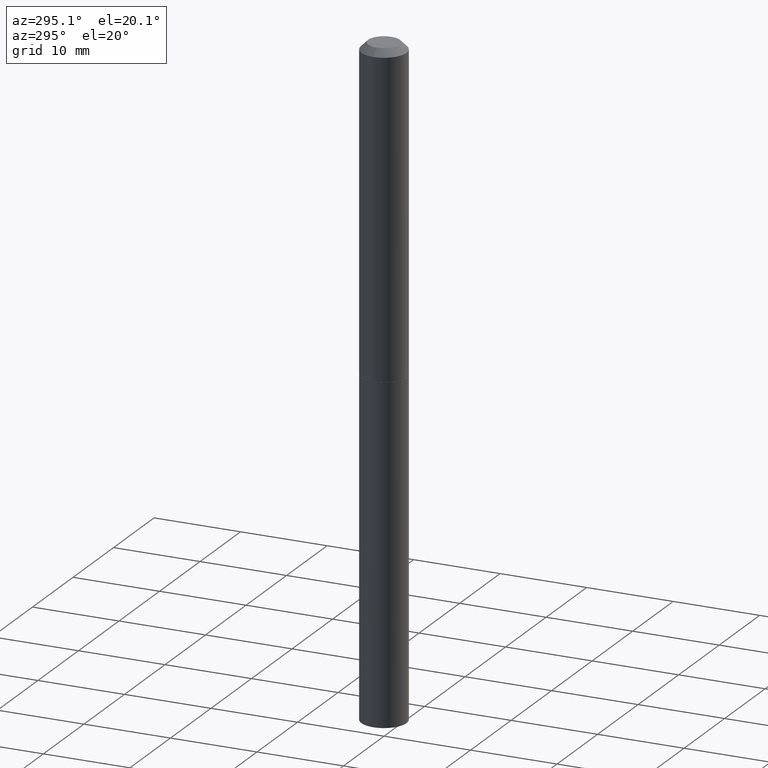
[diagram: clean part render]
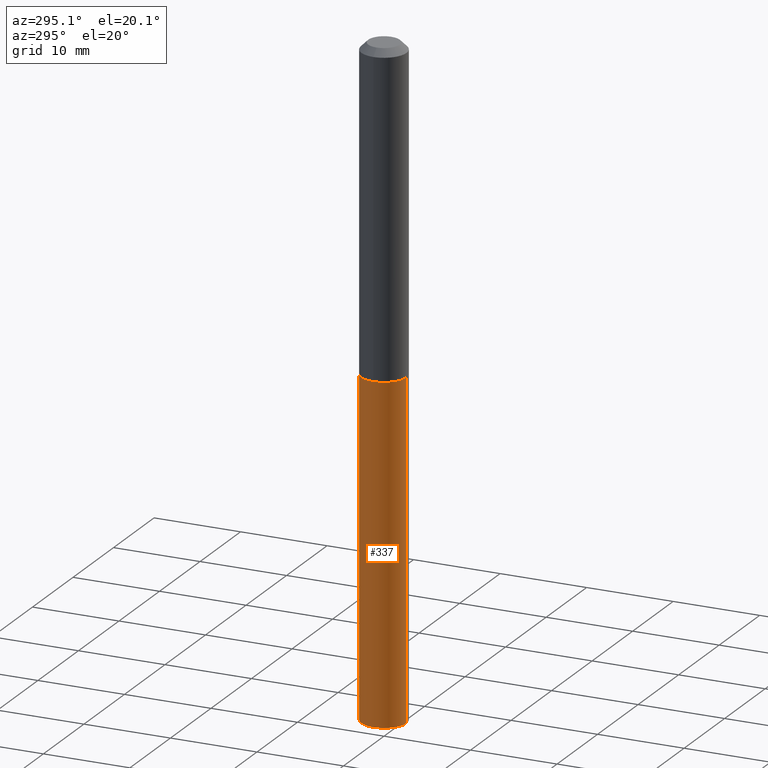
[diagram: same view with one face highlighted and labeled with its STEP entity id]
A machine part, auxiliary view. The second image highlights one B-rep face of the part: STEP entity #337.
In plain terms, the highlighted cylindrical surface (edge-blend (fillet) strip) has radius 2.6098 mm, axis along (-0, 0, 1).
Its self-contained STEP definition (entity closure, byte-faithful):
#5 = DIRECTION ( 'NONE',  ( -6.982962677686265922E-15, -1.000000000000000000, 5.317465681098323142E-15 ) ) ;
#8 = AXIS2_PLACEMENT_3D ( 'NONE', #181, #99, #17 ) ;
#11 = DIRECTION ( 'NONE',  ( -2.445476892198395388E-29, 3.491469759211931858E-15, 1.000000000000000000 ) ) ;
#17 = DIRECTION ( 'NONE',  ( -6.982962677686265922E-15, -1.000000000000000000, 2.658732840549161571E-15 ) ) ;
#29 = EDGE_LOOP ( 'NONE', ( #354, #349, #383, #313 ) ) ;
#41 = CARTESIAN_POINT ( 'NONE',  ( -7.174994151322282046E-16, -0.1027500000000050873, -1.455500000000000016 ) ) ;
#92 = FACE_OUTER_BOUND ( 'NONE', #29, .T. ) ;
#95 = CARTESIAN_POINT ( 'NONE',  ( -7.174994151321908323E-16, -0.1027500000000103608, -2.972468220477701539 ) ) ;
#98 = CARTESIAN_POINT ( 'NONE',  ( 7.300826609935383979E-16, 0.1027499999999949148, -1.455500000000000682 ) ) ;
#99 = DIRECTION ( 'NONE',  ( -2.445476892198395388E-29, 3.491469759211931858E-15, 1.000000000000000000 ) ) ;
#105 = VERTEX_POINT ( 'NONE', #167 ) ;
#109 = AXIS2_PLACEMENT_3D ( 'NONE', #336, #11, #5 ) ;
#114 = DIRECTION ( 'NONE',  ( -2.445476892198395388E-29, 3.491469759211932252E-15, 1.000000000000000000 ) ) ;
#119 = EDGE_CURVE ( 'NONE', #254, #186, #265, .T. ) ;
#121 = CYLINDRICAL_SURFACE ( 'NONE', #382, 0.1027499999999999941 ) ;
#130 = DIRECTION ( 'NONE',  ( -2.445476892198395388E-29, 3.491469759211932252E-15, 1.000000000000000000 ) ) ;
#143 = CIRCLE ( 'NONE', #8, 0.1027499999999999941 ) ;
#167 = CARTESIAN_POINT ( 'NONE',  ( 7.300826609935757702E-16, 0.1027499999999949148, -1.455500000000000682 ) ) ;
#181 = CARTESIAN_POINT ( 'NONE',  ( 3.559379847402467424E-29, -5.081851088686199626E-15, -1.455500000000000460 ) ) ;
#183 = EDGE_CURVE ( 'NONE', #377, #105, #363, .T. ) ;
#186 = VERTEX_POINT ( 'NONE', #41 ) ;
#205 = DIRECTION ( 'NONE',  ( -2.445476892198395388E-29, 3.491469759211931858E-15, 1.000000000000000000 ) ) ;
#208 = CARTESIAN_POINT ( 'NONE',  ( 3.559379847402467424E-29, -5.081851088686199626E-15, -1.455500000000000460 ) ) ;
#254 = VERTEX_POINT ( 'NONE', #95 ) ;
#265 = LINE ( 'NONE', #362, #274 ) ;
#267 = EDGE_CURVE ( 'NONE', #105, #186, #143, .T. ) ;
#269 = VECTOR ( 'NONE', #130, 39.37007874015748143 ) ;
#274 = VECTOR ( 'NONE', #114, 39.37007874015748143 ) ;
#313 = ORIENTED_EDGE ( 'NONE', *, *, #267, .F. ) ;
#326 = CIRCLE ( 'NONE', #109, 0.1027499999999999941 ) ;
#328 = DIRECTION ( 'NONE',  ( -6.982962677686265922E-15, -1.000000000000000000, 2.658732840549161571E-15 ) ) ;
#336 = CARTESIAN_POINT ( 'NONE',  ( 7.269090576780008610E-29, -1.037829975616963449E-14, -2.972468220477702427 ) ) ;
#337 = ADVANCED_FACE ( 'NONE', ( #92 ), #121, .T. ) ;
#349 = ORIENTED_EDGE ( 'NONE', *, *, #356, .T. ) ;
#354 = ORIENTED_EDGE ( 'NONE', *, *, #183, .F. ) ;
#356 = EDGE_CURVE ( 'NONE', #377, #254, #326, .T. ) ;
#362 = CARTESIAN_POINT ( 'NONE',  ( -7.174994151322282046E-16, -0.1027500000000050873, -1.455500000000000016 ) ) ;
#363 = LINE ( 'NONE', #98, #269 ) ;
#377 = VERTEX_POINT ( 'NONE', #381 ) ;
#381 = CARTESIAN_POINT ( 'NONE',  ( 7.300826609935753758E-16, 0.1027499999999895858, -2.972468220477702872 ) ) ;
#382 = AXIS2_PLACEMENT_3D ( 'NONE', #208, #205, #328 ) ;
#383 = ORIENTED_EDGE ( 'NONE', *, *, #119, .T. ) ;